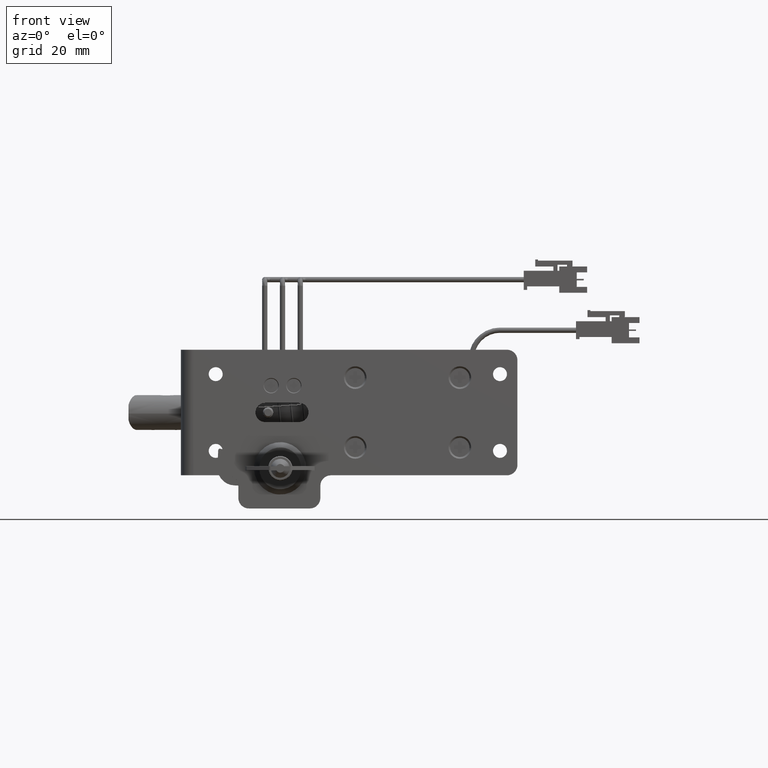
[diagram: clean part render]
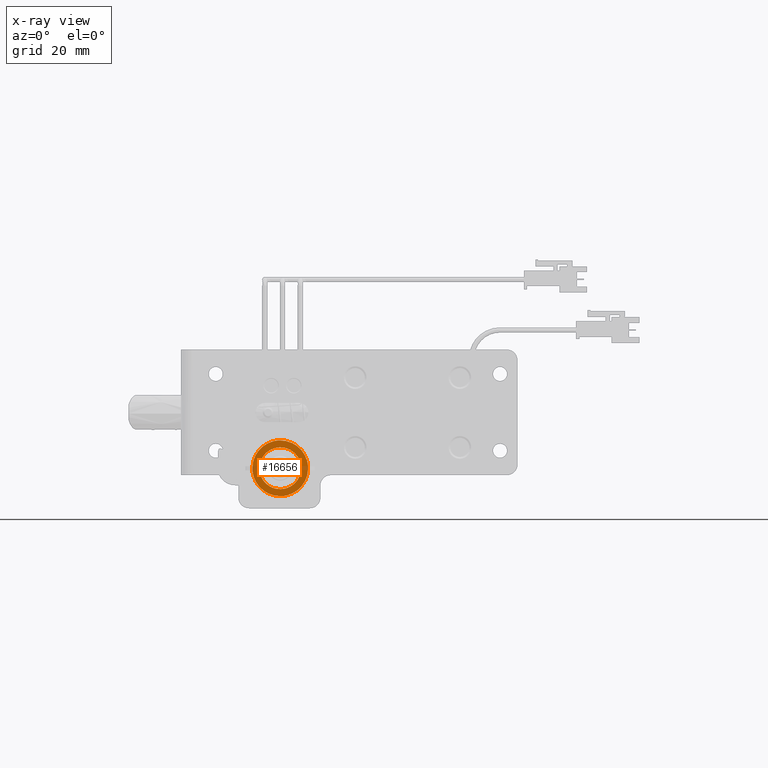
[diagram: x-ray — body ghosted, one internal face saturated and labeled with its STEP entity id]
A machine part, front view, then the same camera in x-ray: the body is ghosted and one INTERNAL B-rep face — a face not visible from any outside direction — is saturated and labeled: STEP entity #16656.
In plain terms, the highlighted face is a freeform B-spline surface patch.
Its self-contained STEP definition (entity closure, byte-faithful):
#15486=CARTESIAN_POINT('',(8.0,2.599999999999999,-4.898425E-016));
#15487=VERTEX_POINT('',#15486);
#15488=CARTESIAN_POINT('',(0.260228516133295,2.600000000000283,-7.995766449773829));
#15489=VERTEX_POINT('',#15488);
#15490=CARTESIAN_POINT('',(8.0,2.599999999999999,-4.898425E-016));
#15491=CARTESIAN_POINT('',(7.999999999999938,2.600000000000139,-7.743869491415472));
#15492=CARTESIAN_POINT('',(0.260228516133295,2.600000000000283,-7.995766449773828));
#15500=(BOUNDED_CURVE()B_SPLINE_CURVE(2,(#15490,#15491,#15492),.UNSPECIFIED.,.F.,.U.)B_SPLINE_CURVE_WITH_KNOTS((3,3),(0.0,0.244286686083129),.UNSPECIFIED.)CURVE()GEOMETRIC_REPRESENTATION_ITEM()RATIONAL_B_SPLINE_CURVE((1.0,0.713800344799364,0.986918812215507))REPRESENTATION_ITEM(''));
#15501=EDGE_CURVE('',#15487,#15489,#15500,.T.);
#15615=CARTESIAN_POINT('',(-0.260228516133295,2.600000000000282,7.995766449773829));
#15616=VERTEX_POINT('',#15615);
#15622=CARTESIAN_POINT('',(-0.260228516133295,2.600000000000282,7.995766449773828));
#15623=CARTESIAN_POINT('',(-0.130148695006376,2.600000000000280,7.999999999996141));
#15624=CARTESIAN_POINT('',(1.272359E-013,2.600000000000279,7.999999999996172));
#15625=CARTESIAN_POINT('',(8.000000000000064,2.600000000000136,7.999999999998116));
#15626=CARTESIAN_POINT('',(8.0,2.599999999999999,-4.898425E-016));
#15634=(BOUNDED_CURVE()B_SPLINE_CURVE(2,(#15622,#15623,#15624,#15625,#15626),.UNSPECIFIED.,.F.,.U.)B_SPLINE_CURVE_WITH_KNOTS((3,2,3),(0.744286686083129,0.750000000000000,1.0),.UNSPECIFIED.)CURVE()GEOMETRIC_REPRESENTATION_ITEM()RATIONAL_B_SPLINE_CURVE((0.986918812215507,0.993306436387183,1.0,0.707106781186548,1.0))REPRESENTATION_ITEM(''));
#15635=EDGE_CURVE('',#15616,#15487,#15634,.T.);
#15658=CARTESIAN_POINT('',(-8.0,2.600000000000001,4.898425E-016));
#15659=VERTEX_POINT('',#15658);
#15660=CARTESIAN_POINT('',(0.260228516133295,2.600000000000283,-7.995766449773828));
#15661=CARTESIAN_POINT('',(0.130148695006378,2.600000000000282,-7.999999999996140));
#15662=CARTESIAN_POINT('',(-1.235326E-013,2.600000000000279,-7.999999999996171));
#15663=CARTESIAN_POINT('',(-8.000000000000060,2.600000000000138,-7.999999999998116));
#15664=CARTESIAN_POINT('',(-8.0,2.600000000000001,4.898425E-016));
#15672=(BOUNDED_CURVE()B_SPLINE_CURVE(2,(#15660,#15661,#15662,#15663,#15664),.UNSPECIFIED.,.F.,.U.)B_SPLINE_CURVE_WITH_KNOTS((3,2,3),(0.244286686083129,0.250000000000000,0.500000000000000),.UNSPECIFIED.)CURVE()GEOMETRIC_REPRESENTATION_ITEM()RATIONAL_B_SPLINE_CURVE((0.986918812215507,0.993306436387183,1.0,0.707106781186548,1.0))REPRESENTATION_ITEM(''));
#15673=EDGE_CURVE('',#15489,#15659,#15672,.T.);
#15675=CARTESIAN_POINT('',(-8.0,2.600000000000001,4.898425E-016));
#15676=CARTESIAN_POINT('',(-7.999999999999934,2.600000000000143,7.743869491415469));
#15677=CARTESIAN_POINT('',(-0.260228516133295,2.600000000000282,7.995766449773828));
#15685=(BOUNDED_CURVE()B_SPLINE_CURVE(2,(#15675,#15676,#15677),.UNSPECIFIED.,.F.,.U.)B_SPLINE_CURVE_WITH_KNOTS((3,3),(0.500000000000000,0.744286686083129),.UNSPECIFIED.)CURVE()GEOMETRIC_REPRESENTATION_ITEM()RATIONAL_B_SPLINE_CURVE((1.0,0.713800344799364,0.986918812215507))REPRESENTATION_ITEM(''));
#15686=EDGE_CURVE('',#15659,#15616,#15685,.T.);
#16013=CARTESIAN_POINT('',(-2.904737509655819,2.600000000000000,5.250000000000000));
#16014=VERTEX_POINT('',#16013);
#16026=CARTESIAN_POINT('',(2.904737509655976,2.600000000000000,5.249999999999890));
#16027=VERTEX_POINT('',#16026);
#16109=CARTESIAN_POINT('',(2.904737509655765,2.600000000000000,-5.249999999999890));
#16110=VERTEX_POINT('',#16109);
#16122=CARTESIAN_POINT('',(-2.904737509655975,2.600000000000000,-5.249999999999890));
#16123=VERTEX_POINT('',#16122);
#16558=CARTESIAN_POINT('',(2.904737509655976,2.600000000000000,5.249999999999890));
#16559=CARTESIAN_POINT('',(3.516891934973298,2.600000000000001,4.911964902945235));
#16560=CARTESIAN_POINT('',(4.436038868039312,2.600000000000000,4.167095000166215));
#16561=CARTESIAN_POINT('',(5.419467193535533,2.600000000000009,2.727760470936052));
#16562=CARTESIAN_POINT('',(5.869611959665826,2.599999999999967,1.460154187752895));
#16563=CARTESIAN_POINT('',(6.035830006461278,2.600000000000061,0.134967928618657));
#16564=CARTESIAN_POINT('',(5.964462441907007,2.599999999999919,-0.935276894781180));
#16565=CARTESIAN_POINT('',(5.683196406868379,2.600000000000096,-2.000559625248115));
#16566=CARTESIAN_POINT('',(5.183742952777646,2.599999999999953,-3.131477994807220));
#16567=CARTESIAN_POINT('',(4.287918293533898,2.600000000000041,-4.311357875339036));
#16568=CARTESIAN_POINT('',(3.370933438746610,2.599999999999982,-4.992242143288188));
#16569=CARTESIAN_POINT('',(2.904737509655765,2.600000000000000,-5.249999999999890));
#16570=B_SPLINE_CURVE_WITH_KNOTS('',3,(#16558,#16559,#16560,#16561,#16562,#16563,#16564,#16565,#16566,#16567,#16568,#16569),.UNSPECIFIED.,.F.,.U.,(4,1,1,1,1,1,1,1,1,4),(0.000000346774572,2.097589765175872,3.496012448777332,5.194119225567305,6.093109616334083,7.491373974675097,8.390366523631005,9.389261342159079,11.187254248741059,12.785377418886419),.UNSPECIFIED.);
#16571=EDGE_CURVE('',#16027,#16110,#16570,.T.);
#16593=CARTESIAN_POINT('',(-2.904737509655975,2.600000000000000,-5.249999999999890));
#16594=CARTESIAN_POINT('',(-3.516850962730443,2.600000000000012,-4.911924190805630));
#16595=CARTESIAN_POINT('',(-4.436114992115589,2.599999999999965,-4.167148967906194));
#16596=CARTESIAN_POINT('',(-5.343707204687763,2.600000000000049,-2.838430455576877));
#16597=CARTESIAN_POINT('',(-5.784743933458223,2.599999999999941,-1.716330675376798));
#16598=CARTESIAN_POINT('',(-6.000735938183326,2.600000000000091,-0.601852321325941));
#16599=CARTESIAN_POINT('',(-6.016883520746855,2.599999999999935,0.368349677569510));
#16600=CARTESIAN_POINT('',(-5.852529175055399,2.600000000000036,1.457179026804163));
#16601=CARTESIAN_POINT('',(-5.521421654862404,2.599999999999998,2.441151888085789));
#16602=CARTESIAN_POINT('',(-4.977277678224829,2.600000000000047,3.400083027298344));
#16603=CARTESIAN_POINT('',(-4.176528062212585,2.599999999999790,4.385341460508297));
#16604=CARTESIAN_POINT('',(-3.429294042440590,2.600000000000297,4.960079337982935));
#16605=CARTESIAN_POINT('',(-2.904737509655819,2.600000000000000,5.250000000000000));
#16606=B_SPLINE_CURVE_WITH_KNOTS('',3,(#16593,#16594,#16595,#16596,#16597,#16598,#16599,#16600,#16601,#16602,#16603,#16604,#16605),.UNSPECIFIED.,.F.,.U.,(4,1,1,1,1,1,1,1,1,1,4),(0.000000346777920,2.097589765178903,3.496012448780025,4.794563718346333,5.693557580570502,6.892108622671691,7.691169872889700,8.989717254556119,9.988588933508664,10.987436841657150,12.785377418886400),.UNSPECIFIED.);
#16607=EDGE_CURVE('',#16123,#16014,#16606,.T.);
#16615=CARTESIAN_POINT('',(8.799199968988898,2.599999999999999,8.797277879640790));
#16616=CARTESIAN_POINT('',(8.799199968988896,2.599999999999999,-8.797278308794230));
#16617=CARTESIAN_POINT('',(-8.799200398142336,2.600000000000001,8.797277879640790));
#16618=CARTESIAN_POINT('',(-8.799200398142338,2.600000000000001,-8.797278308794230));
#16619=B_SPLINE_SURFACE_WITH_KNOTS('',1,1,((#16615,#16617),(#16616,#16618)),.UNSPECIFIED.,.F.,.F.,.U.,(2,2),(2,2),(0.0,17.594556188435021),(0.0,17.598400367131230),.UNSPECIFIED.);
#16620=ORIENTED_EDGE('',*,*,#15635,.F.);
#16621=ORIENTED_EDGE('',*,*,#15686,.F.);
#16622=ORIENTED_EDGE('',*,*,#15673,.F.);
#16623=ORIENTED_EDGE('',*,*,#15501,.F.);
#16624=EDGE_LOOP('',(#16620,#16621,#16622,#16623));
#16625=FACE_OUTER_BOUND('',#16624,.T.);
#16626=ORIENTED_EDGE('',*,*,#16607,.T.);
#16627=CARTESIAN_POINT('',(-2.904737509655819,2.600000000000000,5.250000000000000));
#16628=CARTESIAN_POINT('',(1.105452E-013,2.599999999999999,6.857142857143175));
#16629=CARTESIAN_POINT('',(2.904737509655977,2.600000000000000,5.249999999999885));
#16637=(BOUNDED_CURVE()B_SPLINE_CURVE(2,(#16627,#16628,#16629),.UNSPECIFIED.,.F.,.U.)CURVE()GEOMETRIC_REPRESENTATION_ITEM()QUASI_UNIFORM_CURVE()RATIONAL_B_SPLINE_CURVE((1.0,0.874999999999974,1.0))REPRESENTATION_ITEM(''));
#16638=EDGE_CURVE('',#16014,#16027,#16637,.T.);
#16639=ORIENTED_EDGE('',*,*,#16638,.T.);
#16640=ORIENTED_EDGE('',*,*,#16571,.T.);
#16641=CARTESIAN_POINT('',(2.904737509655765,2.600000000000000,-5.249999999999890));
#16642=CARTESIAN_POINT('',(-1.027981E-013,2.599999999999999,-6.857142857143175));
#16643=CARTESIAN_POINT('',(-2.904737509655971,2.600000000000000,-5.249999999999888));
#16651=(BOUNDED_CURVE()B_SPLINE_CURVE(2,(#16641,#16642,#16643),.UNSPECIFIED.,.F.,.U.)CURVE()GEOMETRIC_REPRESENTATION_ITEM()QUASI_UNIFORM_CURVE()RATIONAL_B_SPLINE_CURVE((1.0,0.874999999999974,1.0))REPRESENTATION_ITEM(''));
#16652=EDGE_CURVE('',#16110,#16123,#16651,.T.);
#16653=ORIENTED_EDGE('',*,*,#16652,.T.);
#16654=EDGE_LOOP('',(#16626,#16639,#16640,#16653));
#16655=FACE_BOUND('',#16654,.T.);
#16656=ADVANCED_FACE('',(#16625,#16655),#16619,.F.);